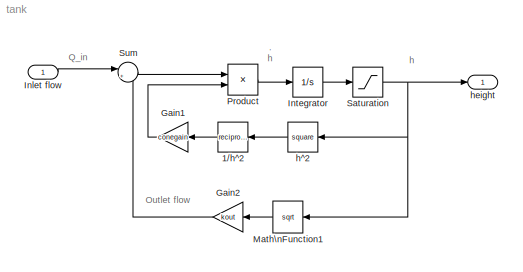
MODEL tank
KIND model
CONFIG AbsTol = auto
CONFIG FixedStep = auto
CONFIG MaxStep = auto
CONFIG RelTol = 1e-5
CONFIG Solver = ode45
CONFIG SolverMode = Auto
CONFIG StartTime = 0.0
CONFIG StopTime = 200.0
BLOCK [Math] 1//h^2
  Operator = reciprocal
  OutputSignalType = auto
  Ports = [1, 1, 0, 0, 0]
BLOCK [Gain] Gain1
  Gain = conegain
  SaturateOnIntegerOverflow = off
BLOCK [Gain] Gain2
  Gain = kout
  SaturateOnIntegerOverflow = off
BLOCK [Inport] Inlet flow
  DataType = auto
  Interpolate = on
  Port = 1
  PortWidth = -1
  SampleTime = -1
  SignalType = auto
BLOCK [Integrator] Integrator
  AbsoluteTolerance = auto
  ExternalReset = none
  InitialCondition = starth
  InitialConditionSource = internal
  LimitOutput = off
  LowerSaturationLimit = -inf
  Ports = [1, 1, 0, 0, 0]
  ShowSaturationPort = off
  ShowStatePort = off
  UpperSaturationLimit = inf
BLOCK [Math] Math\nFunction1
  Operator = sqrt
  OutputSignalType = auto
  Ports = [1, 1, 0, 0, 0]
BLOCK [Product] Product
  Inputs = 2
  Ports = [2, 1, 0, 0, 0]
  SaturateOnIntegerOverflow = on
BLOCK [Saturate] Saturation
  LowerLimit = 1e-3
  UpperLimit = 0.5
BLOCK [Sum] Sum
  IconShape = round
  Inputs = |+-
  Ports = [2, 1, 0, 0, 0]
  SaturateOnIntegerOverflow = on
BLOCK [Math] h^2
  Operator = square
  OutputSignalType = auto
  Ports = [1, 1, 0, 0, 0]
BLOCK [Outport] height
  InitialOutput = []
  OutputWhenDisabled = held
  Port = 1
LINE 1//h^2:1 -> Gain1:1
LINE Gain1:1 -> Product:2
LINE Gain2:1 -> Sum:2
LINE Inlet flow:1 -> Sum:1
LINE Integrator:1 -> Saturation:1
LINE Math\nFunction1:1 -> Gain2:1
LINE Product:1 -> Integrator:1
NET Saturation:1 -> Math\nFunction1:1, h^2:1, height:1
LINE Sum:1 -> Product:1
LINE h^2:1 -> 1//h^2:1
note: NET lines group one-source signal fan-out (src -> all destinations, sorted); 1:1 wires keep LINE
